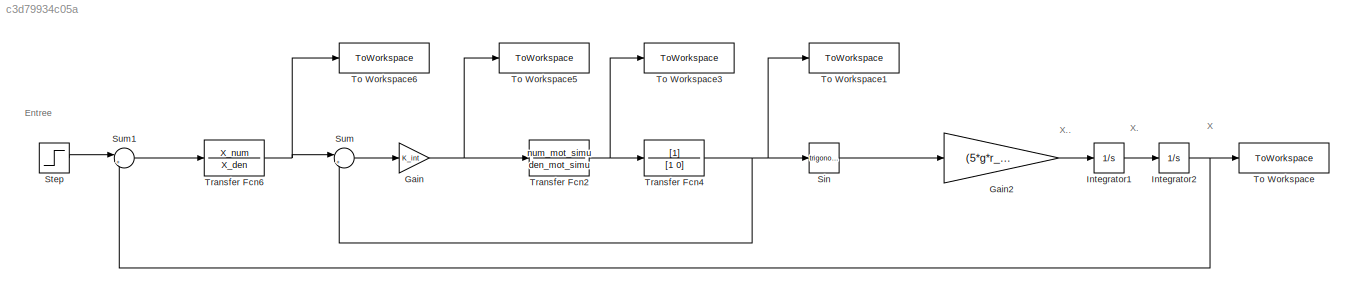
MODEL slx_c3d79934c05a
KIND model
CONFIG AbsTol = auto
CONFIG EnableMultiTasking = off
CONFIG FixedStep = auto
CONFIG MaxStep = auto
CONFIG MinStep = auto
CONFIG RelTol = 1e-3
CONFIG SampleTimeConstraint = Unconstrained
CONFIG SolverName = VariableStepAuto
CONFIG StartTime = 0.0
CONFIG StopTime = 3
BLOCK [Gain] Gain
  Gain = K_int
BLOCK [Gain] Gain2
  Gain = (5*g*r_arm)/(7*L)
BLOCK [Integrator] Integrator1
BLOCK [Integrator] Integrator2
BLOCK [Trigonometry] Sin
BLOCK [Step] Step
  After = Test_Position
  SampleTime = 0
BLOCK [Sum] Sum
  Inputs = |+-
BLOCK [Sum] Sum1
  Inputs = |+-
BLOCK [ToWorkspace] To Workspace
  FixptAsFi = on
  MaxDataPoints = inf
  SampleTime = -1
  SaveFormat = Timeseries
  VariableName = X
BLOCK [ToWorkspace] To Workspace1
  FixptAsFi = on
  MaxDataPoints = inf
  SampleTime = -1
  Save2DSignal = 2-D array (concatenate along first dimension)
  SaveFormat = Timeseries
  VariableName = Theta_C
BLOCK [ToWorkspace] To Workspace3
  FixptAsFi = on
  MaxDataPoints = inf
  SampleTime = -1
  VariableName = Omega_C
BLOCK [ToWorkspace] To Workspace5
  FixptAsFi = on
  MaxDataPoints = inf
  SampleTime = -1
  Save2DSignal = 2-D array (concatenate along first dimension)
  SaveFormat = Timeseries
  VariableName = Vm_out
BLOCK [ToWorkspace] To Workspace6
  FixptAsFi = on
  MaxDataPoints = inf
  SampleTime = -1
  Save2DSignal = 2-D array (concatenate along first dimension)
  SaveFormat = Timeseries
  VariableName = Theta_Cd
BLOCK [TransferFcn] Transfer Fcn2
  Denominator = den_mot_simu
  Numerator = num_mot_simu
BLOCK [TransferFcn] Transfer Fcn4
  Denominator = [1 0]
BLOCK [TransferFcn] Transfer Fcn6
  Denominator = X_den
  Numerator = X_num
ANNOTATION (root): Entree
ANNOTATION (root): X
ANNOTATION (root): X.
ANNOTATION (root): X..
LINE Gain2:1 -> Integrator1:1
NET Gain:1 -> To Workspace5:1, Transfer Fcn2:1
LINE Integrator1:1 -> Integrator2:1
NET Integrator2:1 -> Sum1:2, To Workspace:1
LINE Sin:1 -> Gain2:1
LINE Step:1 -> Sum1:1
LINE Sum1:1 -> Transfer Fcn6:1
LINE Sum:1 -> Gain:1
NET Transfer Fcn2:1 -> To Workspace3:1, Transfer Fcn4:1
NET Transfer Fcn4:1 -> Sin:1, Sum:2, To Workspace1:1
NET Transfer Fcn6:1 -> Sum:1, To Workspace6:1
note: NET lines group one-source signal fan-out (src -> all destinations, sorted); 1:1 wires keep LINE
